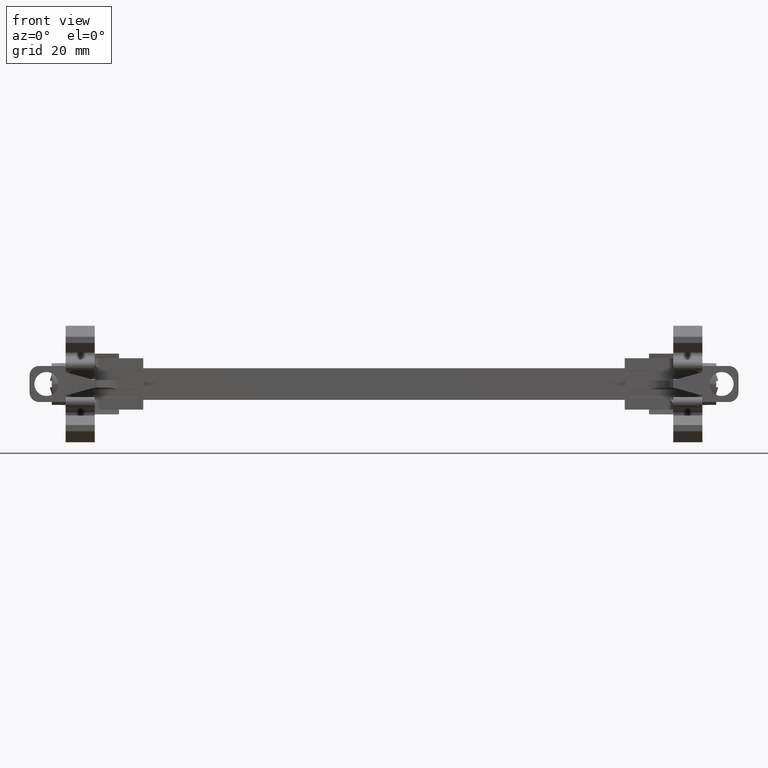
[diagram: clean part render]
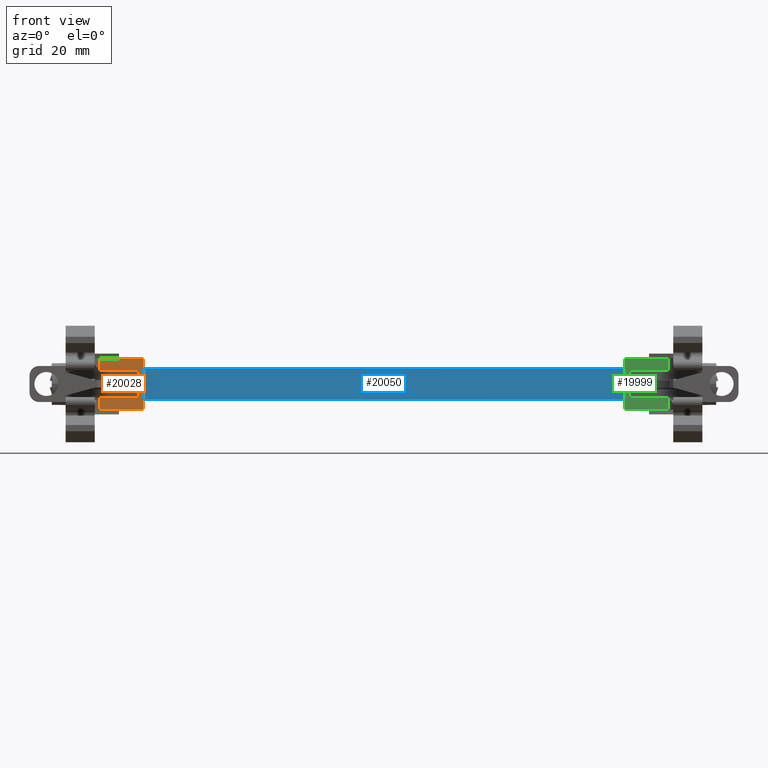
[diagram: same view with three faces highlighted in distinct colors, each labeled with its STEP entity id]
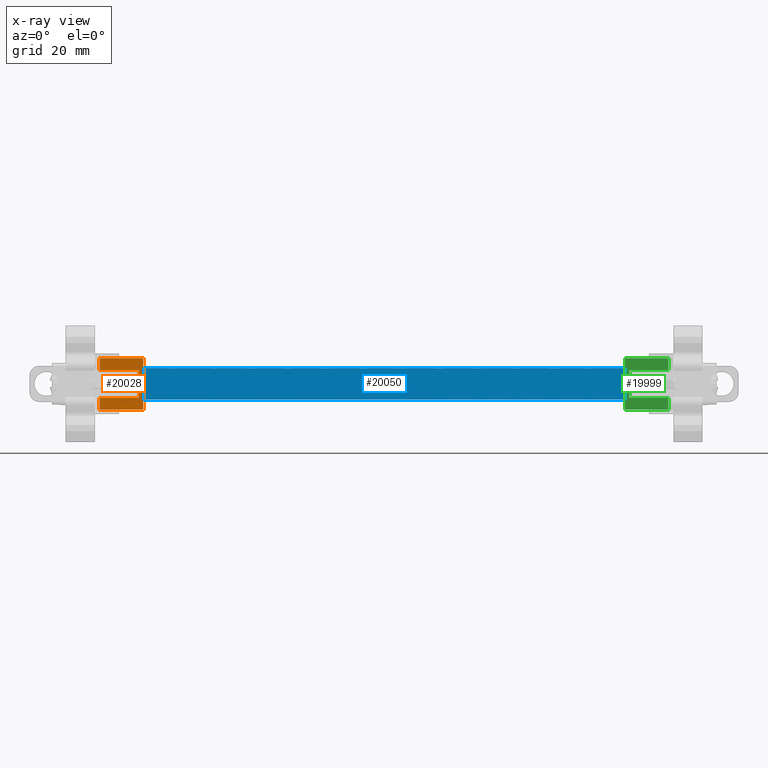
[diagram: x-ray of the same camera — body ghosted, the three highlighted faces saturated]
A machine part, front view with three faces highlighted in distinct colors.
The next image is the same camera in x-ray (body ghosted, the three faces saturated) — at least one of them is partly hidden behind the body in this view.
Their STEP definitions:

[orange] entity #20028 — the highlighted planar face has unit normal (0, -1, -0).
#1909 = LINE ( 'NONE', #1945, #16737 ) ;
#1945 = CARTESIAN_POINT ( 'NONE',  ( -158.5863964936864900, -47.31558989762123700, 96.76944204098953200 ) ) ;
#1964 = DIRECTION ( 'NONE',  ( -1.000000000000000000, -1.123605221868038000E-014, -1.559315484883646900E-027 ) ) ;
#2045 = LINE ( 'NONE', #2078, #16783 ) ;
#2078 = CARTESIAN_POINT ( 'NONE',  ( -146.4903964936865200, -47.31558989762024900, 90.63749771212344800 ) ) ;
#2082 = DIRECTION ( 'NONE',  ( 0.0000000000000000000, 1.387778780781406000E-013, -1.000000000000000000 ) ) ;
#2095 = DIRECTION ( 'NONE',  ( 1.000000000000000000, 1.123605221868038000E-014, 1.559315484883646900E-027 ) ) ;
#2099 = DIRECTION ( 'NONE',  ( 0.0000000000000000000, 1.387778780781406000E-013, -1.000000000000000000 ) ) ;
#2102 = LINE ( 'NONE', #2121, #16821 ) ;
#2104 = CARTESIAN_POINT ( 'NONE',  ( -158.5863964936864900, -47.31558989762152800, 98.90701242942628800 ) ) ;
#2116 = CARTESIAN_POINT ( 'NONE',  ( -142.4503964936866700, -47.31558989762020700, 90.63749771212344800 ) ) ;
#2117 = LINE ( 'NONE', #2116, #16795 ) ;
#2121 = CARTESIAN_POINT ( 'NONE',  ( -142.4503964936866100, -47.31558989762020700, 90.63749771212344800 ) ) ;
#2131 = DIRECTION ( 'NONE',  ( 0.0000000000000000000, 1.387778780781406000E-013, -1.000000000000000000 ) ) ;
#2136 = LINE ( 'NONE', #2104, #16860 ) ;
#2141 = CARTESIAN_POINT ( 'NONE',  ( -158.5863964936864900, -47.31558989762073300, 93.13187156615252600 ) ) ;
#2145 = DIRECTION ( 'NONE',  ( 0.0000000000000000000, 1.387778780781406000E-013, -1.000000000000000000 ) ) ;
#2148 = CARTESIAN_POINT ( 'NONE',  ( -150.5223964936865300, -47.31558989762029900, 90.63749771212344800 ) ) ;
#2150 = DIRECTION ( 'NONE',  ( -1.000000000000000000, -1.123605221868038000E-014, -1.559315484883646900E-027 ) ) ;
#2155 = LINE ( 'NONE', #2171, #16871 ) ;
#2162 = DIRECTION ( 'NONE',  ( 0.0000000000000000000, 1.387778780781406000E-013, -1.000000000000000000 ) ) ;
#2163 = LINE ( 'NONE', #2141, #16841 ) ;
#2171 = CARTESIAN_POINT ( 'NONE',  ( -150.5223964936865000, -47.31558989762029900, 90.63749771212344800 ) ) ;
#2184 = LINE ( 'NONE', #2148, #16887 ) ;
#2915 = LINE ( 'NONE', #2919, #16771 ) ;
#2919 = CARTESIAN_POINT ( 'NONE',  ( -158.5863964936864900, -47.31558989762097400, 94.90236202366872900 ) ) ;
#2937 = DIRECTION ( 'NONE',  ( 1.000000000000000000, 1.123605221868038000E-014, 1.559315484883646900E-027 ) ) ;
#7920 = CARTESIAN_POINT ( 'NONE',  ( -142.4503964936866400, -47.31558989602126500, 93.13187156596595200 ) ) ;
#7945 = CARTESIAN_POINT ( 'NONE',  ( -150.5223964936865300, -47.31558989762104500, 98.90701242942627400 ) ) ;
#7962 = CARTESIAN_POINT ( 'NONE',  ( -150.5223964936864700, -47.31558989762064000, 93.13187155574739500 ) ) ;
#7977 = CARTESIAN_POINT ( 'NONE',  ( -150.5223964936865300, -47.31558989762178400, 101.3154422156376300 ) ) ;
#7985 = CARTESIAN_POINT ( 'NONE',  ( -142.4503964936866100, -47.31558989762105900, 96.76944204098954600 ) ) ;
#8014 = CARTESIAN_POINT ( 'NONE',  ( -146.4903964936865200, -47.31558989762082500, 94.90236202366858700 ) ) ;
#8136 = CARTESIAN_POINT ( 'NONE',  ( -141.5303964936865700, -47.31558989762076800, 101.3154422156375300 ) ) ;
#8256 = CARTESIAN_POINT ( 'NONE',  ( -141.5303964936865400, -47.31558989762030600, 90.73144221564027100 ) ) ;
#8524 = CARTESIAN_POINT ( 'NONE',  ( -142.4503964936866400, -47.31558989680689800, 98.90701242422513000 ) ) ;
#8535 = CARTESIAN_POINT ( 'NONE',  ( -142.4503964936866400, -47.31558989607246000, 94.90236201804775400 ) ) ;
#8538 = CARTESIAN_POINT ( 'NONE',  ( -146.4903964936865500, -47.31558989762110200, 96.76944204098973000 ) ) ;
#8539 = CARTESIAN_POINT ( 'NONE',  ( -150.5223964936864700, -47.31558989762030600, 90.73144221564003000 ) ) ;
#9811 = DIRECTION ( 'NONE',  ( -1.000000000000000000, 3.582068324215832900E-028, -2.589419078423884300E-015 ) ) ;
#9813 = DIRECTION ( 'NONE',  ( -1.000000000000000000, -1.123605221868038000E-014, -1.559315484883646900E-027 ) ) ;
#9824 = CARTESIAN_POINT ( 'NONE',  ( -158.5863964936864900, -47.31558989762186900, 101.3154422156375300 ) ) ;
#9828 = LINE ( 'NONE', #9824, #16608 ) ;
#9847 = CARTESIAN_POINT ( 'NONE',  ( -73.90431649368652200, -47.31558989762030600, 90.73144221564018600 ) ) ;
#9851 = LINE ( 'NONE', #9847, #16609 ) ;
#9868 = CARTESIAN_POINT ( 'NONE',  ( -141.5303964936865700, -47.31558989762030600, 99.35113534996753500 ) ) ;
#9874 = DIRECTION ( 'NONE',  ( 2.589419078425440300E-015, 2.909484798123454300E-029, -1.000000000000000000 ) ) ;
#9888 = LINE ( 'NONE', #9868, #16600 ) ;
#11985 = VERTEX_POINT ( 'NONE', #8538 ) ;
#11992 = VERTEX_POINT ( 'NONE', #8524 ) ;
#12004 = VERTEX_POINT ( 'NONE', #8535 ) ;
#12005 = VERTEX_POINT ( 'NONE', #8539 ) ;
#12023 = VERTEX_POINT ( 'NONE', #7977 ) ;
#12025 = VERTEX_POINT ( 'NONE', #7920 ) ;
#12026 = VERTEX_POINT ( 'NONE', #7985 ) ;
#12028 = VERTEX_POINT ( 'NONE', #7962 ) ;
#12039 = VERTEX_POINT ( 'NONE', #7945 ) ;
#12048 = VERTEX_POINT ( 'NONE', #8014 ) ;
#12106 = VERTEX_POINT ( 'NONE', #8136 ) ;
#12184 = VERTEX_POINT ( 'NONE', #8256 ) ;
#16094 = EDGE_CURVE ( 'NONE', #12106, #12023, #9828, .T. ) ;
#16096 = EDGE_CURVE ( 'NONE', #12184, #12005, #9851, .T. ) ;
#16112 = EDGE_CURVE ( 'NONE', #12106, #12184, #9888, .T. ) ;
#16251 = EDGE_CURVE ( 'NONE', #12048, #12004, #2915, .T. ) ;
#16270 = EDGE_CURVE ( 'NONE', #12026, #11985, #1909, .T. ) ;
#16303 = EDGE_CURVE ( 'NONE', #11985, #12048, #2045, .T. ) ;
#16305 = EDGE_CURVE ( 'NONE', #11992, #12026, #2102, .T. ) ;
#16309 = EDGE_CURVE ( 'NONE', #12004, #12025, #2117, .T. ) ;
#16317 = EDGE_CURVE ( 'NONE', #12039, #11992, #2136, .T. ) ;
#16319 = EDGE_CURVE ( 'NONE', #12025, #12028, #2163, .T. ) ;
#16322 = EDGE_CURVE ( 'NONE', #12023, #12039, #2184, .T. ) ;
#16329 = EDGE_CURVE ( 'NONE', #12028, #12005, #2155, .T. ) ;
#16600 = VECTOR ( 'NONE', #9874, 1000.000000000000000 ) ;
#16608 = VECTOR ( 'NONE', #9813, 1000.000000000000000 ) ;
#16609 = VECTOR ( 'NONE', #9811, 1000.000000000000000 ) ;
#16737 = VECTOR ( 'NONE', #1964, 1000.000000000000000 ) ;
#16771 = VECTOR ( 'NONE', #2937, 1000.000000000000000 ) ;
#16783 = VECTOR ( 'NONE', #2082, 1000.000000000000000 ) ;
#16795 = VECTOR ( 'NONE', #2131, 1000.000000000000000 ) ;
#16821 = VECTOR ( 'NONE', #2099, 1000.000000000000000 ) ;
#16841 = VECTOR ( 'NONE', #2150, 1000.000000000000000 ) ;
#16860 = VECTOR ( 'NONE', #2095, 1000.000000000000000 ) ;
#16871 = VECTOR ( 'NONE', #2145, 1000.000000000000000 ) ;
#16887 = VECTOR ( 'NONE', #2162, 1000.000000000000000 ) ;
#20028 = ADVANCED_FACE ( 'NONE', ( #24590 ), #24579, .T. ) ;
#20324 = EDGE_LOOP ( 'NONE', ( #21899, #21941, #21879, #21939, #21920, #21903, #21981, #21942, #21933, #21895, #21891, #21914 ) ) ;
#21879 = ORIENTED_EDGE ( 'NONE', *, *, #16251, .T. ) ;
#21891 = ORIENTED_EDGE ( 'NONE', *, *, #16317, .T. ) ;
#21895 = ORIENTED_EDGE ( 'NONE', *, *, #16322, .T. ) ;
#21899 = ORIENTED_EDGE ( 'NONE', *, *, #16270, .T. ) ;
#21903 = ORIENTED_EDGE ( 'NONE', *, *, #16329, .T. ) ;
#21914 = ORIENTED_EDGE ( 'NONE', *, *, #16305, .T. ) ;
#21920 = ORIENTED_EDGE ( 'NONE', *, *, #16319, .T. ) ;
#21933 = ORIENTED_EDGE ( 'NONE', *, *, #16094, .T. ) ;
#21939 = ORIENTED_EDGE ( 'NONE', *, *, #16309, .T. ) ;
#21941 = ORIENTED_EDGE ( 'NONE', *, *, #16303, .T. ) ;
#21942 = ORIENTED_EDGE ( 'NONE', *, *, #16112, .F. ) ;
#21981 = ORIENTED_EDGE ( 'NONE', *, *, #16096, .F. ) ;
#24579 = PLANE ( 'NONE',  #26002 ) ;
#24590 = FACE_OUTER_BOUND ( 'NONE', #20324, .T. ) ;
#24595 = DIRECTION ( 'NONE',  ( 0.0000000000000000000, 1.387778780781406000E-013, -1.000000000000000000 ) ) ;
#24611 = DIRECTION ( 'NONE',  ( 1.123605221868038000E-014, -1.000000000000000000, -1.387778780781406000E-013 ) ) ;
#24614 = CARTESIAN_POINT ( 'NONE',  ( -158.5863964936864900, -47.31558989762038400, 90.63749771212344800 ) ) ;
#26002 = AXIS2_PLACEMENT_3D ( 'NONE', #24614, #24611, #24595 ) ;

[blue] entity #20050 — the highlighted planar face has unit normal (0, 1, 0).
#1651 = LINE ( 'NONE', #1664, #17357 ) ;
#1664 = CARTESIAN_POINT ( 'NONE',  ( -42.33039649368586100, -45.46391012921959900, 99.25723811290720300 ) ) ;
#1673 = CARTESIAN_POINT ( 'NONE',  ( -141.5303964936866000, -45.46391012921959900, 99.25723811290720300 ) ) ;
#1678 = LINE ( 'NONE', #1673, #17370 ) ;
#1679 = DIRECTION ( 'NONE',  ( 0.0000000000000000000, -0.0000000000000000000, 1.000000000000000000 ) ) ;
#1698 = DIRECTION ( 'NONE',  ( -0.0000000000000000000, 0.0000000000000000000, -1.000000000000000000 ) ) ;
#3068 = LINE ( 'NONE', #3071, #25639 ) ;
#3071 = CARTESIAN_POINT ( 'NONE',  ( -90.70539649368640800, -45.46391012921959900, 92.75723811290720300 ) ) ;
#3097 = DIRECTION ( 'NONE',  ( -1.000000000000000000, -0.0000000000000000000, 0.0000000000000000000 ) ) ;
#3244 = LINE ( 'NONE', #3267, #25176 ) ;
#3252 = DIRECTION ( 'NONE',  ( -1.000000000000000000, 0.0000000000000000000, -0.0000000000000000000 ) ) ;
#3267 = CARTESIAN_POINT ( 'NONE',  ( -90.70539649368640800, -45.46391012921959900, 99.25723811290720300 ) ) ;
#8251 = CARTESIAN_POINT ( 'NONE',  ( -141.5303964936866000, -45.46391012921959900, 92.75723811290720300 ) ) ;
#8275 = CARTESIAN_POINT ( 'NONE',  ( -42.33039649368586100, -45.46391012921959900, 99.25723811290720300 ) ) ;
#8283 = CARTESIAN_POINT ( 'NONE',  ( -141.5303964936866000, -45.46391012921959900, 99.25723811290720300 ) ) ;
#8293 = CARTESIAN_POINT ( 'NONE',  ( -42.33039649368585300, -45.46391012921959900, 92.75723811290720300 ) ) ;
#12172 = VERTEX_POINT ( 'NONE', #8293 ) ;
#12180 = VERTEX_POINT ( 'NONE', #8283 ) ;
#12183 = VERTEX_POINT ( 'NONE', #8251 ) ;
#12206 = VERTEX_POINT ( 'NONE', #8275 ) ;
#12685 = EDGE_CURVE ( 'NONE', #12172, #12183, #3068, .T. ) ;
#12743 = EDGE_CURVE ( 'NONE', #12206, #12180, #3244, .T. ) ;
#13104 = EDGE_CURVE ( 'NONE', #12183, #12180, #1678, .T. ) ;
#13106 = EDGE_CURVE ( 'NONE', #12206, #12172, #1651, .T. ) ;
#17357 = VECTOR ( 'NONE', #1698, 1000.000000000000000 ) ;
#17370 = VECTOR ( 'NONE', #1679, 1000.000000000000000 ) ;
#18628 = ORIENTED_EDGE ( 'NONE', *, *, #12685, .F. ) ;
#18648 = ORIENTED_EDGE ( 'NONE', *, *, #13104, .F. ) ;
#18659 = ORIENTED_EDGE ( 'NONE', *, *, #13106, .F. ) ;
#18678 = ORIENTED_EDGE ( 'NONE', *, *, #12743, .T. ) ;
#20050 = ADVANCED_FACE ( 'NONE', ( #23566 ), #23535, .F. ) ;
#20464 = EDGE_LOOP ( 'NONE', ( #18678, #18648, #18628, #18659 ) ) ;
#23535 = PLANE ( 'NONE',  #26061 ) ;
#23537 = CARTESIAN_POINT ( 'NONE',  ( -90.70539649368640800, -45.46391012921959900, 99.25723811290720300 ) ) ;
#23539 = DIRECTION ( 'NONE',  ( 0.0000000000000000000, -0.0000000000000000000, 1.000000000000000000 ) ) ;
#23559 = DIRECTION ( 'NONE',  ( 0.0000000000000000000, 1.000000000000000000, 0.0000000000000000000 ) ) ;
#23566 = FACE_OUTER_BOUND ( 'NONE', #20464, .T. ) ;
#25176 = VECTOR ( 'NONE', #3252, 1000.000000000000000 ) ;
#25639 = VECTOR ( 'NONE', #3097, 1000.000000000000000 ) ;
#26061 = AXIS2_PLACEMENT_3D ( 'NONE', #23537, #23559, #23539 ) ;

[green] entity #19999 — the highlighted planar face has unit normal (0, -1, -0).
#2220 = LINE ( 'NONE', #2226, #16862 ) ;
#2226 = CARTESIAN_POINT ( 'NONE',  ( -25.27439649368585600, -47.31558989762004300, 98.90701240862146900 ) ) ;
#2227 = DIRECTION ( 'NONE',  ( 1.000000000000000000, 1.100161628464522800E-014, 1.526780963412981600E-027 ) ) ;
#2235 = LINE ( 'NONE', #2271, #16840 ) ;
#2237 = DIRECTION ( 'NONE',  ( -0.0000000000000000000, -1.387778780781406000E-013, 1.000000000000000000 ) ) ;
#2239 = DIRECTION ( 'NONE',  ( -0.0000000000000000000, -1.387778780781406000E-013, 1.000000000000000000 ) ) ;
#2241 = DIRECTION ( 'NONE',  ( -1.000000000000000000, -1.100161628464522800E-014, -1.526780963412981600E-027 ) ) ;
#2242 = LINE ( 'NONE', #2273, #16886 ) ;
#2253 = CARTESIAN_POINT ( 'NONE',  ( -41.41039649368581600, -47.31558989761908400, 90.63749771212378900 ) ) ;
#2254 = LINE ( 'NONE', #2274, #16865 ) ;
#2259 = LINE ( 'NONE', #2253, #16883 ) ;
#2271 = CARTESIAN_POINT ( 'NONE',  ( -37.37039649368586000, -47.31558989761903400, 90.63749771212378900 ) ) ;
#2273 = CARTESIAN_POINT ( 'NONE',  ( -41.41039649368575900, -47.31558989761908400, 90.63749771212378900 ) ) ;
#2274 = CARTESIAN_POINT ( 'NONE',  ( -25.27439649368585600, -47.31558989761924700, 93.13187154534229300 ) ) ;
#2290 = DIRECTION ( 'NONE',  ( -0.0000000000000000000, -1.387778780781406000E-013, 1.000000000000000000 ) ) ;
#2298 = CARTESIAN_POINT ( 'NONE',  ( -33.33839649368585600, -47.31558989761899200, 90.63749771212378900 ) ) ;
#2306 = DIRECTION ( 'NONE',  ( -0.0000000000000000000, -1.387778780781406000E-013, 1.000000000000000000 ) ) ;
#2320 = LINE ( 'NONE', #2298, #16906 ) ;
#2333 = LINE ( 'NONE', #2361, #16921 ) ;
#2354 = CARTESIAN_POINT ( 'NONE',  ( -25.27439649368585600, -47.31558989761948900, 94.90236200118508200 ) ) ;
#2358 = DIRECTION ( 'NONE',  ( 1.000000000000000000, 1.100161628464522800E-014, 1.526780963412981600E-027 ) ) ;
#2361 = CARTESIAN_POINT ( 'NONE',  ( -33.33839649368585600, -47.31558989761899200, 90.63749771212378900 ) ) ;
#2363 = DIRECTION ( 'NONE',  ( -0.0000000000000000000, -1.387778780781406000E-013, 1.000000000000000000 ) ) ;
#2377 = LINE ( 'NONE', #2354, #16892 ) ;
#2404 = LINE ( 'NONE', #2407, #16944 ) ;
#2407 = CARTESIAN_POINT ( 'NONE',  ( -25.27439649368585600, -47.31558989761975200, 96.76944204098977300 ) ) ;
#2418 = DIRECTION ( 'NONE',  ( -1.000000000000000000, -1.100161628464522800E-014, -1.526780963412981600E-027 ) ) ;
#3620 = CARTESIAN_POINT ( 'NONE',  ( -37.37039649368581700, -47.31558989761961000, 94.90236201242690600 ) ) ;
#7954 = CARTESIAN_POINT ( 'NONE',  ( -41.41039649368575900, -47.31558989680517200, 93.13187155054491500 ) ) ;
#7963 = CARTESIAN_POINT ( 'NONE',  ( -33.33839649368586300, -47.31558989761900600, 90.73144221564064100 ) ) ;
#8044 = CARTESIAN_POINT ( 'NONE',  ( -33.33839649368585600, -47.31558989761984400, 101.3154422156382000 ) ) ;
#8122 = CARTESIAN_POINT ( 'NONE',  ( -42.33039649368586100, -47.31558989761921200, 101.3154422156381000 ) ) ;
#8236 = CARTESIAN_POINT ( 'NONE',  ( -42.33039649368581100, -47.31558989761916900, 90.73144221564078300 ) ) ;
#8512 = CARTESIAN_POINT ( 'NONE',  ( -41.41039649368581600, -47.31558989602096000, 98.90701240880814300 ) ) ;
#8519 = CARTESIAN_POINT ( 'NONE',  ( -33.33839649368586300, -47.31558989761933300, 93.13187154534244900 ) ) ;
#9825 = LINE ( 'NONE', #9849, #16590 ) ;
#9826 = DIRECTION ( 'NONE',  ( 1.000000000000000000, 1.100161628464522800E-014, 1.526780963412981600E-027 ) ) ;
#9833 = DIRECTION ( 'NONE',  ( 1.000000000000000000, 3.254029360473868200E-028, 2.352285033426070200E-015 ) ) ;
#9842 = LINE ( 'NONE', #9843, #16614 ) ;
#9843 = CARTESIAN_POINT ( 'NONE',  ( -25.27439649368585600, -47.31558989761891400, 90.73144221564078300 ) ) ;
#9849 = CARTESIAN_POINT ( 'NONE',  ( -109.9564764936857700, -47.31558989761920500, 101.3154422156382600 ) ) ;
#9900 = LINE ( 'NONE', #9915, #16639 ) ;
#9915 = CARTESIAN_POINT ( 'NONE',  ( -42.33039649368583200, -47.31558989761920500, 99.35113534996779100 ) ) ;
#9925 = DIRECTION ( 'NONE',  ( -2.352285033424550400E-015, -2.587893732985000900E-029, 1.000000000000000000 ) ) ;
#11005 = CARTESIAN_POINT ( 'NONE',  ( -41.41039649368575900, -47.31558989463217600, 94.90236200158150800 ) ) ;
#11515 = CARTESIAN_POINT ( 'NONE',  ( -37.37039649368583100, -47.31558989761988700, 96.76944204098977300 ) ) ;
#11967 = VERTEX_POINT ( 'NONE', #11515 ) ;
#11969 = VERTEX_POINT ( 'NONE', #11005 ) ;
#11970 = VERTEX_POINT ( 'NONE', #22998 ) ;
#11971 = VERTEX_POINT ( 'NONE', #23002 ) ;
#11975 = VERTEX_POINT ( 'NONE', #3620 ) ;
#11986 = VERTEX_POINT ( 'NONE', #8512 ) ;
#12009 = VERTEX_POINT ( 'NONE', #8519 ) ;
#12019 = VERTEX_POINT ( 'NONE', #7954 ) ;
#12029 = VERTEX_POINT ( 'NONE', #7963 ) ;
#12052 = VERTEX_POINT ( 'NONE', #8044 ) ;
#12103 = VERTEX_POINT ( 'NONE', #8122 ) ;
#12155 = VERTEX_POINT ( 'NONE', #8236 ) ;
#16092 = EDGE_CURVE ( 'NONE', #12155, #12029, #9842, .T. ) ;
#16098 = EDGE_CURVE ( 'NONE', #12103, #12052, #9825, .T. ) ;
#16132 = EDGE_CURVE ( 'NONE', #12155, #12103, #9900, .T. ) ;
#16344 = EDGE_CURVE ( 'NONE', #11986, #11971, #2220, .T. ) ;
#16351 = EDGE_CURVE ( 'NONE', #11970, #11986, #2259, .T. ) ;
#16352 = EDGE_CURVE ( 'NONE', #12009, #12019, #2254, .T. ) ;
#16356 = EDGE_CURVE ( 'NONE', #11975, #11967, #2235, .T. ) ;
#16359 = EDGE_CURVE ( 'NONE', #12019, #11969, #2242, .T. ) ;
#16364 = EDGE_CURVE ( 'NONE', #11971, #12052, #2320, .T. ) ;
#16377 = EDGE_CURVE ( 'NONE', #11969, #11975, #2377, .T. ) ;
#16380 = EDGE_CURVE ( 'NONE', #12029, #12009, #2333, .T. ) ;
#16395 = EDGE_CURVE ( 'NONE', #11967, #11970, #2404, .T. ) ;
#16590 = VECTOR ( 'NONE', #9833, 1000.000000000000000 ) ;
#16614 = VECTOR ( 'NONE', #9826, 1000.000000000000000 ) ;
#16639 = VECTOR ( 'NONE', #9925, 1000.000000000000000 ) ;
#16840 = VECTOR ( 'NONE', #2237, 1000.000000000000000 ) ;
#16862 = VECTOR ( 'NONE', #2227, 1000.000000000000000 ) ;
#16865 = VECTOR ( 'NONE', #2241, 1000.000000000000000 ) ;
#16883 = VECTOR ( 'NONE', #2239, 1000.000000000000000 ) ;
#16886 = VECTOR ( 'NONE', #2306, 1000.000000000000000 ) ;
#16892 = VECTOR ( 'NONE', #2358, 1000.000000000000000 ) ;
#16906 = VECTOR ( 'NONE', #2290, 1000.000000000000000 ) ;
#16921 = VECTOR ( 'NONE', #2363, 1000.000000000000000 ) ;
#16944 = VECTOR ( 'NONE', #2418, 1000.000000000000000 ) ;
#19999 = ADVANCED_FACE ( 'NONE', ( #24449 ), #24475, .T. ) ;
#20345 = EDGE_LOOP ( 'NONE', ( #21938, #21996, #21894, #21881, #21887, #21892, #21898, #21896, #21918, #21930, #21882, #21883 ) ) ;
#21881 = ORIENTED_EDGE ( 'NONE', *, *, #16356, .T. ) ;
#21882 = ORIENTED_EDGE ( 'NONE', *, *, #16092, .T. ) ;
#21883 = ORIENTED_EDGE ( 'NONE', *, *, #16380, .T. ) ;
#21887 = ORIENTED_EDGE ( 'NONE', *, *, #16395, .T. ) ;
#21892 = ORIENTED_EDGE ( 'NONE', *, *, #16351, .T. ) ;
#21894 = ORIENTED_EDGE ( 'NONE', *, *, #16377, .T. ) ;
#21896 = ORIENTED_EDGE ( 'NONE', *, *, #16364, .T. ) ;
#21898 = ORIENTED_EDGE ( 'NONE', *, *, #16344, .T. ) ;
#21918 = ORIENTED_EDGE ( 'NONE', *, *, #16098, .F. ) ;
#21930 = ORIENTED_EDGE ( 'NONE', *, *, #16132, .F. ) ;
#21938 = ORIENTED_EDGE ( 'NONE', *, *, #16352, .T. ) ;
#21996 = ORIENTED_EDGE ( 'NONE', *, *, #16359, .T. ) ;
#22998 = CARTESIAN_POINT ( 'NONE',  ( -41.41039649368581600, -47.31558989761993700, 96.76944204098975900 ) ) ;
#23002 = CARTESIAN_POINT ( 'NONE',  ( -33.33839649368586300, -47.31558989761973100, 98.90701241902399900 ) ) ;
#24449 = FACE_OUTER_BOUND ( 'NONE', #20345, .T. ) ;
#24455 = DIRECTION ( 'NONE',  ( 0.0000000000000000000, 1.387778780781406000E-013, -1.000000000000000000 ) ) ;
#24459 = DIRECTION ( 'NONE',  ( 1.100161628464522800E-014, -1.000000000000000000, -1.387778780781406000E-013 ) ) ;
#24475 = PLANE ( 'NONE',  #26018 ) ;
#24482 = CARTESIAN_POINT ( 'NONE',  ( -25.27439649368585600, -47.31558989761889900, 90.63749771212378900 ) ) ;
#26018 = AXIS2_PLACEMENT_3D ( 'NONE', #24482, #24459, #24455 ) ;